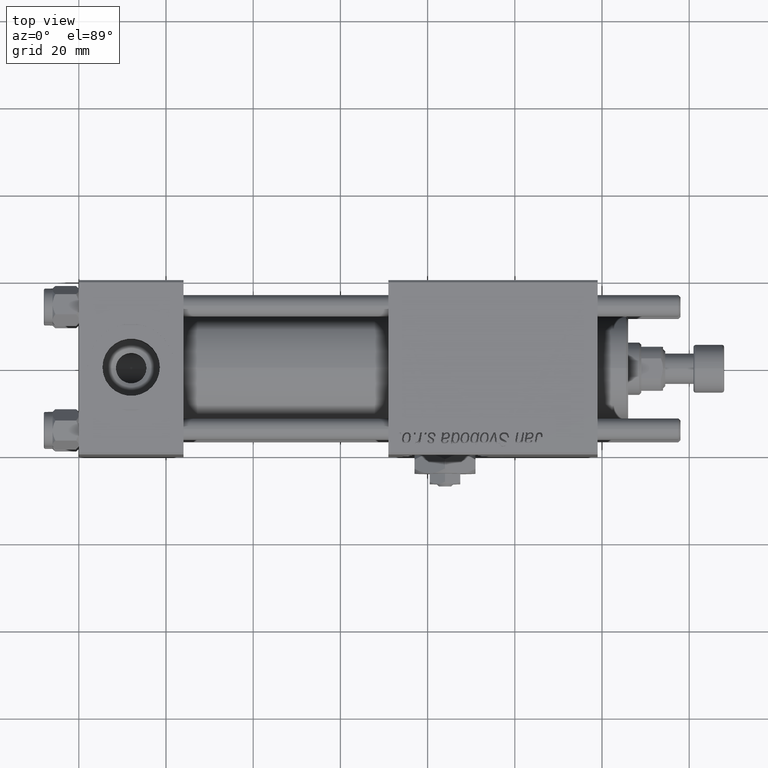
[diagram: clean part render]
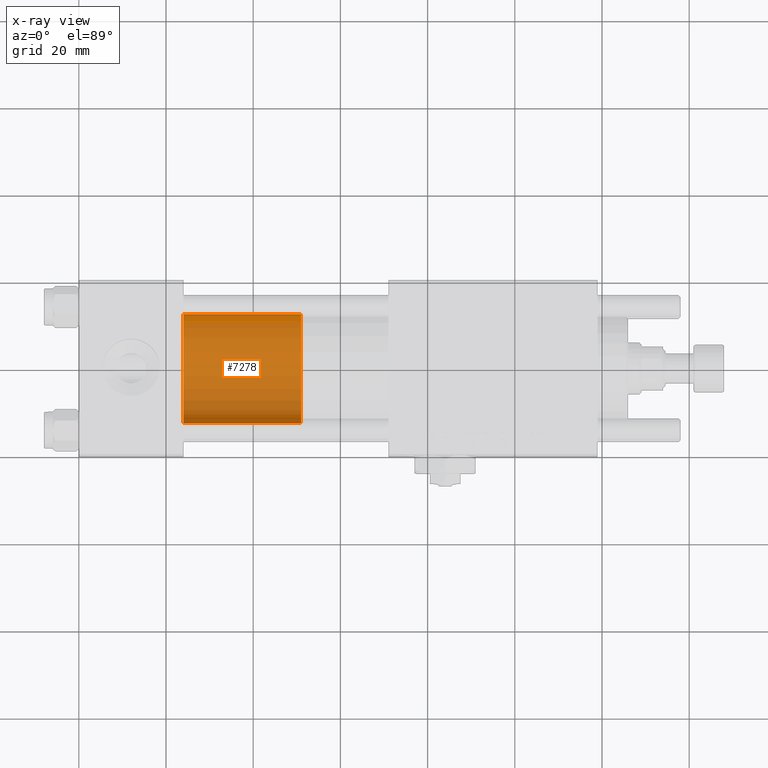
[diagram: x-ray — body ghosted, one internal face saturated and labeled with its STEP entity id]
A machine part, top view, then the same camera in x-ray: the body is ghosted and one INTERNAL B-rep face — a face not visible from any outside direction — is saturated and labeled: STEP entity #7278.
In plain terms, the highlighted cylindrical surface (partial cylindrical patch) has radius 12.5 mm, axis along (-1, 0, 0).
Its self-contained STEP definition (entity closure, byte-faithful):
#894 = ORIENTED_EDGE ( 'NONE', *, *, #28434, .F. ) ;
#1370 = FACE_OUTER_BOUND ( 'NONE', #54928, .T. ) ;
#1968 = DIRECTION ( 'NONE',  ( -0.000000000000000000, -0.000000000000000000, -1.000000000000000000 ) ) ;
#3931 = ORIENTED_EDGE ( 'NONE', *, *, #16734, .T. ) ;
#4062 = CARTESIAN_POINT ( 'NONE',  ( -12.50000000000000000, 0.000000000000000000, 0.000000000000000000 ) ) ;
#5707 = AXIS2_PLACEMENT_3D ( 'NONE', #58840, #13133, #17903 ) ;
#5775 = DIRECTION ( 'NONE',  ( -0.000000000000000000, -0.000000000000000000, -1.000000000000000000 ) ) ;
#7278 = ADVANCED_FACE ( 'NONE', ( #1370 ), #37219, .T. ) ;
#7760 = CARTESIAN_POINT ( 'NONE',  ( 12.50000000000000000, 1.530808498934191521E-15, 27.00000000000000000 ) ) ;
#7862 = CARTESIAN_POINT ( 'NONE',  ( -12.50000000000000000, 0.000000000000000000, 27.00000000000000000 ) ) ;
#10619 = DIRECTION ( 'NONE',  ( -1.000000000000000000, 0.000000000000000000, 0.000000000000000000 ) ) ;
#10969 = CARTESIAN_POINT ( 'NONE',  ( 0.000000000000000000, 0.000000000000000000, 0.000000000000000000 ) ) ;
#13133 = DIRECTION ( 'NONE',  ( 0.000000000000000000, 0.000000000000000000, 1.000000000000000000 ) ) ;
#16734 = EDGE_CURVE ( 'NONE', #45508, #49722, #24291, .T. ) ;
#16736 = VECTOR ( 'NONE', #49732, 1000.000000000000000 ) ;
#17138 = CIRCLE ( 'NONE', #5707, 12.50000000000000000 ) ;
#17903 = DIRECTION ( 'NONE',  ( 1.000000000000000000, 0.000000000000000000, 0.000000000000000000 ) ) ;
#23038 = AXIS2_PLACEMENT_3D ( 'NONE', #32732, #1968, #10619 ) ;
#23235 = VECTOR ( 'NONE', #5775, 1000.000000000000000 ) ;
#24291 = LINE ( 'NONE', #51178, #23235 ) ;
#24700 = VERTEX_POINT ( 'NONE', #4062 ) ;
#28434 = EDGE_CURVE ( 'NONE', #56467, #24700, #44670, .T. ) ;
#29779 = DIRECTION ( 'NONE',  ( 0.000000000000000000, 0.000000000000000000, 1.000000000000000000 ) ) ;
#32732 = CARTESIAN_POINT ( 'NONE',  ( 0.000000000000000000, 0.000000000000000000, 27.00000000000000000 ) ) ;
#37219 = CYLINDRICAL_SURFACE ( 'NONE', #23038, 12.50000000000000000 ) ;
#40190 = CARTESIAN_POINT ( 'NONE',  ( -12.50000000000000000, 0.000000000000000000, 27.00000000000000000 ) ) ;
#40743 = CARTESIAN_POINT ( 'NONE',  ( 12.50000000000000000, 1.530808498934191521E-15, 0.000000000000000000 ) ) ;
#40968 = EDGE_CURVE ( 'NONE', #49722, #24700, #43677, .T. ) ;
#43677 = CIRCLE ( 'NONE', #51284, 12.50000000000000000 ) ;
#44670 = LINE ( 'NONE', #40190, #16736 ) ;
#45508 = VERTEX_POINT ( 'NONE', #7760 ) ;
#45548 = EDGE_CURVE ( 'NONE', #45508, #56467, #17138, .T. ) ;
#48979 = ORIENTED_EDGE ( 'NONE', *, *, #40968, .T. ) ;
#49722 = VERTEX_POINT ( 'NONE', #40743 ) ;
#49732 = DIRECTION ( 'NONE',  ( -0.000000000000000000, -0.000000000000000000, -1.000000000000000000 ) ) ;
#51178 = CARTESIAN_POINT ( 'NONE',  ( 12.50000000000000000, 1.530808498934191521E-15, 27.00000000000000000 ) ) ;
#51284 = AXIS2_PLACEMENT_3D ( 'NONE', #10969, #29779, #56675 ) ;
#52830 = ORIENTED_EDGE ( 'NONE', *, *, #45548, .F. ) ;
#54928 = EDGE_LOOP ( 'NONE', ( #52830, #3931, #48979, #894 ) ) ;
#56467 = VERTEX_POINT ( 'NONE', #7862 ) ;
#56675 = DIRECTION ( 'NONE',  ( 1.000000000000000000, 0.000000000000000000, 0.000000000000000000 ) ) ;
#58840 = CARTESIAN_POINT ( 'NONE',  ( 0.000000000000000000, 0.000000000000000000, 27.00000000000000000 ) ) ;